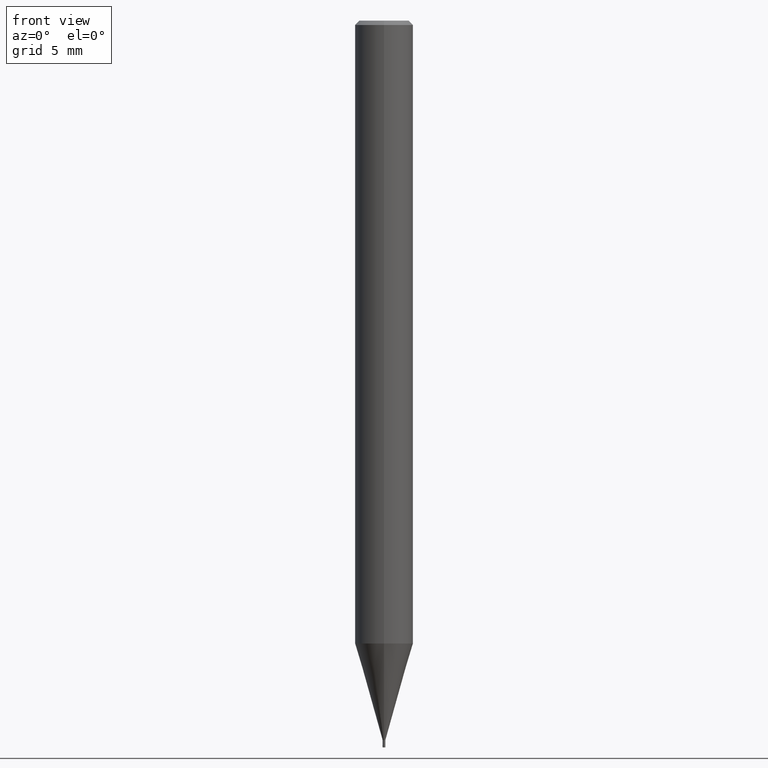
[diagram: clean part render]
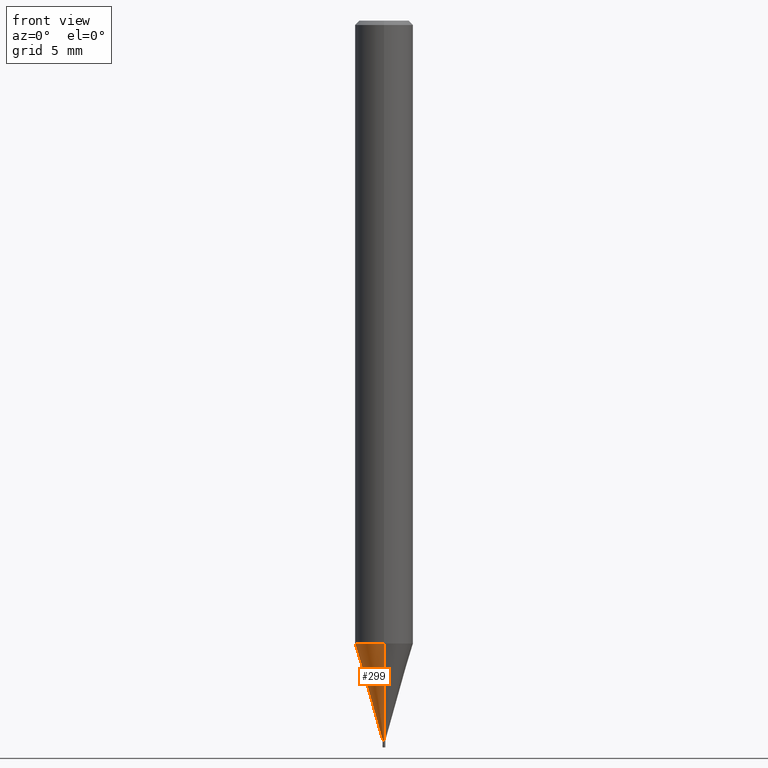
[diagram: same view with one face highlighted and labeled with its STEP entity id]
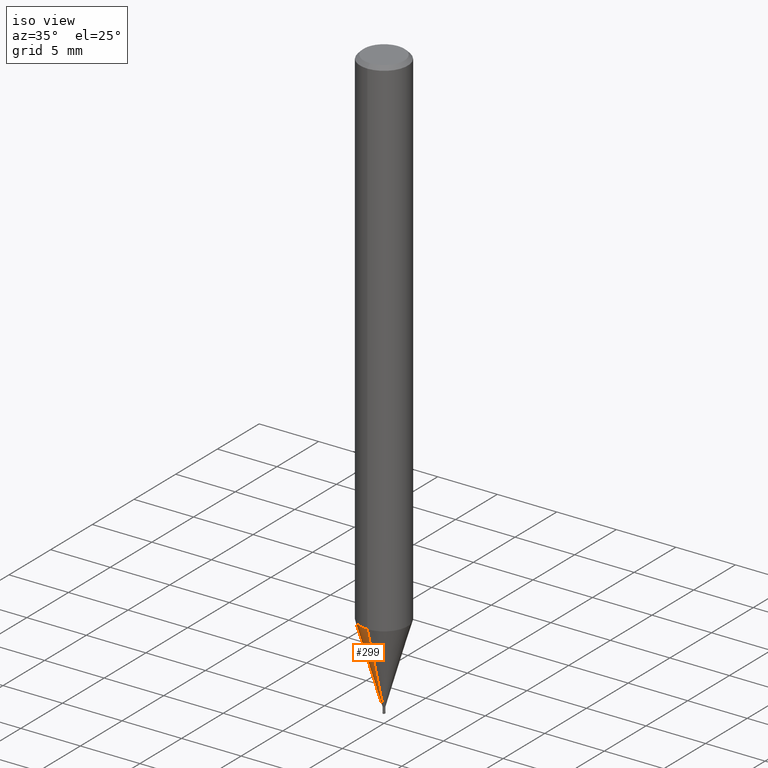
[diagram: same view with one face highlighted and labeled with its STEP entity id]
A machine part, front view. The second image highlights one B-rep face of the part: STEP entity #299.
A second angle (iso view) of the same face is appended — the face is thin or edge-on in the first view.
In plain terms, the highlighted conical surface has half-angle 16.001 deg.
Its self-contained STEP definition (entity closure, byte-faithful):
#143=VERTEX_POINT('',#378);
#163=VERTEX_POINT('',#401);
#169=VERTEX_POINT('',#407);
#235=EDGE_CURVE('',#143,#163,#482,.T.);
#253=VERTEX_POINT('',#504);
#257=EDGE_CURVE('',#169,#253,#508,.T.);
#299=ADVANCED_FACE('',(#552),#553,.T.);
#333=EDGE_CURVE('',#163,#169,#594,.T.);
#335=EDGE_CURVE('',#143,#253,#596,.T.);
#378=CARTESIAN_POINT('',(1.13214857410879E-017,-0.09245,-49.49));
#401=CARTESIAN_POINT('',(2.44915147732706E-016,-1.99995,-42.838));
#407=CARTESIAN_POINT('',(0.0,1.99995,-42.838));
#482=LINE('',#767,#768);
#504=CARTESIAN_POINT('',(0.0,0.09245,-49.49));
#508=LINE('',#798,#799);
#552=FACE_OUTER_BOUND('',#862,.T.);
#553=CONICAL_SURFACE('',#863,1.0462,0.279262361421134);
#594=CIRCLE('',#909,1.99995);
#596=CIRCLE('',#912,0.09245);
#767=CARTESIAN_POINT('',(1.28118316736897E-016,-1.0462,-46.164));
#768=VECTOR('',#1069,1.0);
#798=CARTESIAN_POINT('',(-1.28118316736897E-016,1.0462,-46.164));
#799=VECTOR('',#1104,1.0);
#862=EDGE_LOOP('',(#1149,#1150,#1151,#1152));
#863=AXIS2_PLACEMENT_3D('',#1153,#1154,#1155);
#909=AXIS2_PLACEMENT_3D('',#1216,#1217,#1218);
#912=AXIS2_PLACEMENT_3D('',#1219,#1220,#1221);
#1069=DIRECTION('',(3.37558653544073E-017,-0.275646661876649,0.961259027419904));
#1104=DIRECTION('',(3.37558653544073E-017,-0.275646661876649,-0.961259027419904));
#1149=ORIENTED_EDGE('',*,*,#257,.T.);
#1150=ORIENTED_EDGE('',*,*,#335,.F.);
#1151=ORIENTED_EDGE('',*,*,#235,.T.);
#1152=ORIENTED_EDGE('',*,*,#333,.T.);
#1153=CARTESIAN_POINT('',(0.0,0.0,-46.164));
#1154=DIRECTION('',(-0.0,-0.0,1.0));
#1155=DIRECTION('',(0.0,1.0,0.0));
#1216=CARTESIAN_POINT('',(0.0,0.0,-42.838));
#1217=DIRECTION('',(0.0,0.0,-1.0));
#1218=DIRECTION('',(0.0,1.0,0.0));
#1219=CARTESIAN_POINT('',(0.0,0.0,-49.49));
#1220=DIRECTION('',(0.0,0.0,-1.0));
#1221=DIRECTION('',(0.0,1.0,0.0));